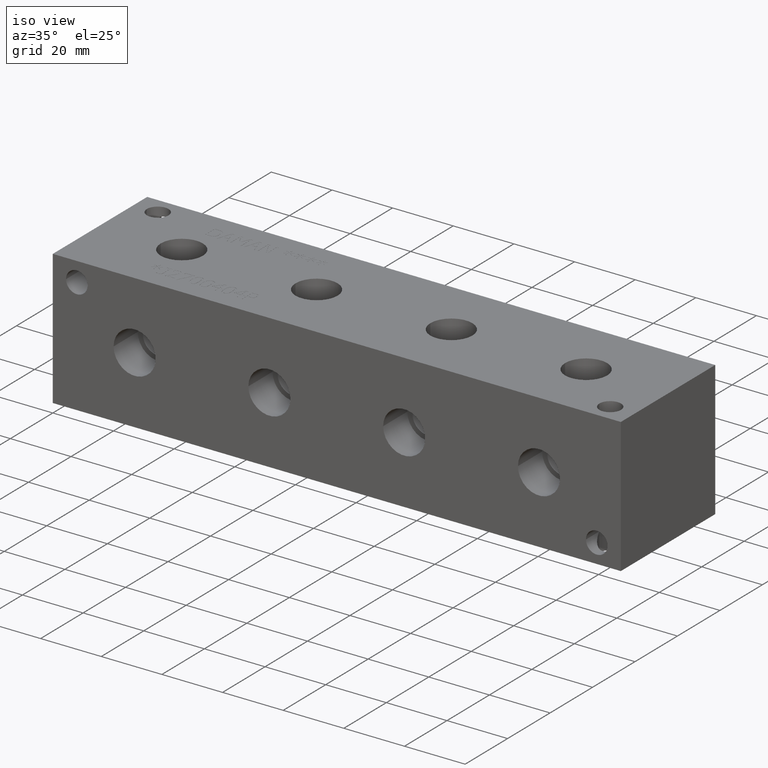
[diagram: clean part render]
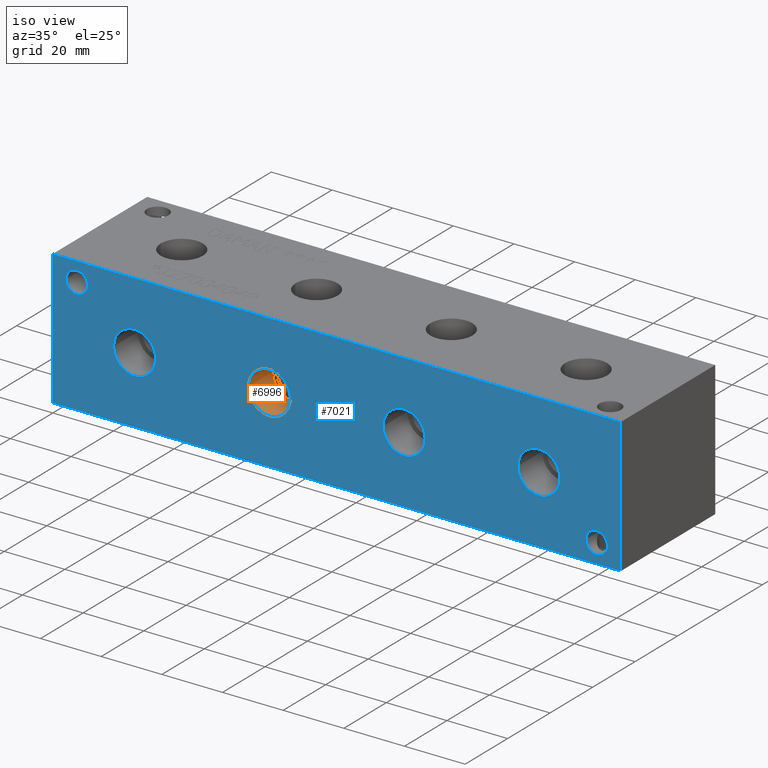
[diagram: same view with the hole feature highlighted: cylindrical wall and planar end face, labeled with their STEP entity ids]
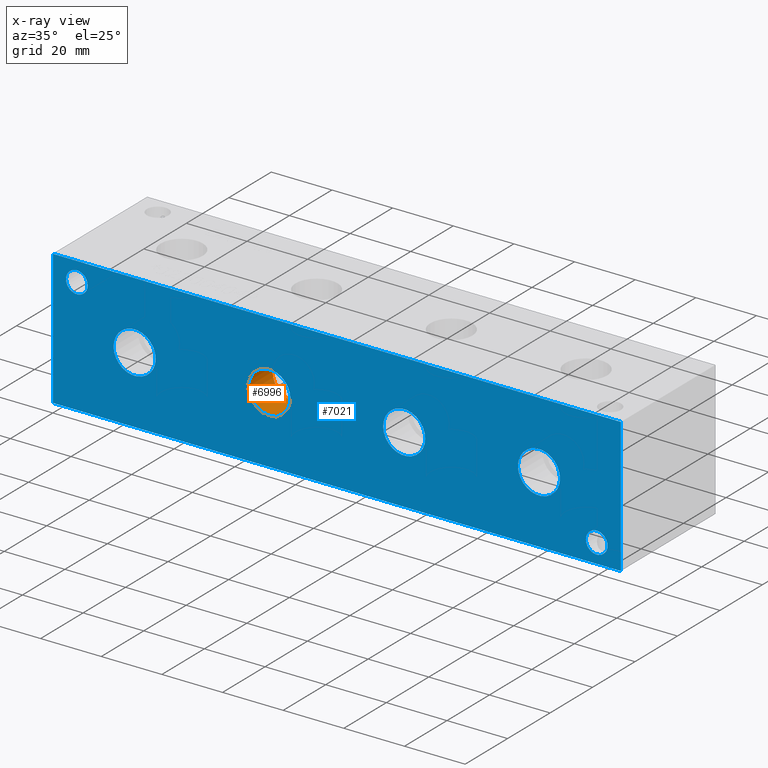
[diagram: x-ray of the same camera — body ghosted, the hole faces saturated]
A machine part, iso view. The highlighted faces form one hole feature of diameter 13.8684 mm: the cylindrical wall (entity #6996, orange) and its adjacent planar end face (entity #7021, blue) — they share a circular edge in the B-rep.
The next image is the same camera in x-ray (body ghosted, the hole faces saturated) — the bore reads through the body.
Wall:
#42=CYLINDRICAL_SURFACE('',#7372,6.9342);
#130=CIRCLE('',#7369,6.9342);
#131=CIRCLE('',#7370,6.9342);
#133=CIRCLE('',#7373,6.9342);
#134=CIRCLE('',#7374,6.9342);
#792=FACE_OUTER_BOUND('',#1188,.T.);
#1188=EDGE_LOOP('',(#6168,#6169,#6170,#6171,#6172,#6173));
#1925=LINE('',#11658,#2640);
#2640=VECTOR('',#8795,6.9342);
#3410=VERTEX_POINT('',#11647);
#3411=VERTEX_POINT('',#11648);
#3413=VERTEX_POINT('',#11654);
#3414=VERTEX_POINT('',#11655);
#4349=EDGE_CURVE('',#3410,#3411,#130,.T.);
#4350=EDGE_CURVE('',#3411,#3410,#131,.T.);
#4352=EDGE_CURVE('',#3413,#3414,#133,.T.);
#4353=EDGE_CURVE('',#3414,#3413,#134,.T.);
#4354=EDGE_CURVE('',#3414,#3411,#1925,.T.);
#6168=ORIENTED_EDGE('',*,*,#4352,.F.);
#6169=ORIENTED_EDGE('',*,*,#4353,.F.);
#6170=ORIENTED_EDGE('',*,*,#4354,.T.);
#6171=ORIENTED_EDGE('',*,*,#4349,.F.);
#6172=ORIENTED_EDGE('',*,*,#4350,.F.);
#6173=ORIENTED_EDGE('',*,*,#4354,.F.);
#6996=ADVANCED_FACE('',(#792),#42,.F.);
#7369=AXIS2_PLACEMENT_3D('',#11649,#8783,#8784);
#7370=AXIS2_PLACEMENT_3D('',#11650,#8785,#8786);
#7372=AXIS2_PLACEMENT_3D('',#11653,#8789,#8790);
#7373=AXIS2_PLACEMENT_3D('',#11656,#8791,#8792);
#7374=AXIS2_PLACEMENT_3D('',#11657,#8793,#8794);
#8783=DIRECTION('center_axis',(0.,-1.,0.));
#8784=DIRECTION('ref_axis',(1.,0.,0.));
#8785=DIRECTION('center_axis',(0.,-1.,0.));
#8786=DIRECTION('ref_axis',(1.,0.,0.));
#8789=DIRECTION('center_axis',(0.,-1.,0.));
#8790=DIRECTION('ref_axis',(1.,0.,0.));
#8791=DIRECTION('center_axis',(0.,1.,0.));
#8792=DIRECTION('ref_axis',(1.,0.,0.));
#8793=DIRECTION('center_axis',(0.,1.,0.));
#8794=DIRECTION('ref_axis',(1.,0.,0.));
#8795=DIRECTION('',(0.,1.,0.));
#11647=CARTESIAN_POINT('',(78.359,11.4046,22.225));
#11648=CARTESIAN_POINT('',(64.4906,11.4046,22.225));
#11649=CARTESIAN_POINT('Origin',(71.4248,11.4046,22.225));
#11650=CARTESIAN_POINT('Origin',(71.4248,11.4046,22.225));
#11653=CARTESIAN_POINT('Origin',(71.4248,5.7023,22.225));
#11654=CARTESIAN_POINT('',(78.359,0.,22.225));
#11655=CARTESIAN_POINT('',(64.4906,0.,22.225));
#11656=CARTESIAN_POINT('Origin',(71.4248,0.,22.225));
#11657=CARTESIAN_POINT('Origin',(71.4248,0.,22.225));
#11658=CARTESIAN_POINT('',(64.4906,5.7023,22.225));
End face:
#106=CIRCLE('',#7320,3.5687);
#107=CIRCLE('',#7321,3.5687);
#109=CIRCLE('',#7329,3.5687);
#110=CIRCLE('',#7330,3.5687);
#119=CIRCLE('',#7351,6.9342);
#120=CIRCLE('',#7352,6.9342);
#126=CIRCLE('',#7362,6.9342);
#127=CIRCLE('',#7363,6.9342);
#133=CIRCLE('',#7373,6.9342);
#134=CIRCLE('',#7374,6.9342);
#140=CIRCLE('',#7384,6.9342);
#141=CIRCLE('',#7385,6.9342);
#210=FACE_BOUND('',#1221,.T.);
#211=FACE_BOUND('',#1222,.T.);
#212=FACE_BOUND('',#1223,.T.);
#213=FACE_BOUND('',#1224,.T.);
#214=FACE_BOUND('',#1225,.T.);
#215=FACE_BOUND('',#1226,.T.);
#462=PLANE('',#7426);
#817=FACE_OUTER_BOUND('',#1220,.T.);
#1220=EDGE_LOOP('',(#6283,#6284,#6285,#6286));
#1221=EDGE_LOOP('',(#6287,#6288));
#1222=EDGE_LOOP('',(#6289,#6290));
#1223=EDGE_LOOP('',(#6291,#6292));
#1224=EDGE_LOOP('',(#6293,#6294));
#1225=EDGE_LOOP('',(#6295,#6296));
#1226=EDGE_LOOP('',(#6297,#6298));
#1517=LINE('',#10526,#2232);
#1943=LINE('',#11759,#2658);
#1948=LINE('',#11768,#2663);
#1949=LINE('',#11770,#2664);
#2232=VECTOR('',#7883,10.);
#2658=VECTOR('',#8911,10.);
#2663=VECTOR('',#8920,10.);
#2664=VECTOR('',#8923,10.);
#3069=VERTEX_POINT('',#10524);
#3070=VERTEX_POINT('',#10525);
#3379=VERTEX_POINT('',#11552);
#3380=VERTEX_POINT('',#11553);
#3384=VERTEX_POINT('',#11568);
#3385=VERTEX_POINT('',#11569);
#3397=VERTEX_POINT('',#11610);
#3398=VERTEX_POINT('',#11611);
#3405=VERTEX_POINT('',#11632);
#3406=VERTEX_POINT('',#11633);
#3413=VERTEX_POINT('',#11654);
#3414=VERTEX_POINT('',#11655);
#3421=VERTEX_POINT('',#11676);
#3422=VERTEX_POINT('',#11677);
#3448=VERTEX_POINT('',#11757);
#3450=VERTEX_POINT('',#11766);
#3853=EDGE_CURVE('',#3069,#3070,#1517,.T.);
#4302=EDGE_CURVE('',#3379,#3380,#106,.T.);
#4303=EDGE_CURVE('',#3380,#3379,#107,.T.);
#4311=EDGE_CURVE('',#3384,#3385,#109,.T.);
#4312=EDGE_CURVE('',#3385,#3384,#110,.T.);
#4332=EDGE_CURVE('',#3397,#3398,#119,.T.);
#4333=EDGE_CURVE('',#3398,#3397,#120,.T.);
#4342=EDGE_CURVE('',#3405,#3406,#126,.T.);
#4343=EDGE_CURVE('',#3406,#3405,#127,.T.);
#4352=EDGE_CURVE('',#3413,#3414,#133,.T.);
#4353=EDGE_CURVE('',#3414,#3413,#134,.T.);
#4362=EDGE_CURVE('',#3421,#3422,#140,.T.);
#4363=EDGE_CURVE('',#3422,#3421,#141,.T.);
#4399=EDGE_CURVE('',#3448,#3069,#1943,.T.);
#4404=EDGE_CURVE('',#3450,#3070,#1948,.T.);
#4405=EDGE_CURVE('',#3448,#3450,#1949,.T.);
#6283=ORIENTED_EDGE('',*,*,#4405,.T.);
#6284=ORIENTED_EDGE('',*,*,#4404,.T.);
#6285=ORIENTED_EDGE('',*,*,#3853,.F.);
#6286=ORIENTED_EDGE('',*,*,#4399,.F.);
#6287=ORIENTED_EDGE('',*,*,#4302,.T.);
#6288=ORIENTED_EDGE('',*,*,#4303,.T.);
#6289=ORIENTED_EDGE('',*,*,#4311,.T.);
#6290=ORIENTED_EDGE('',*,*,#4312,.T.);
#6291=ORIENTED_EDGE('',*,*,#4332,.T.);
#6292=ORIENTED_EDGE('',*,*,#4333,.T.);
#6293=ORIENTED_EDGE('',*,*,#4342,.T.);
#6294=ORIENTED_EDGE('',*,*,#4343,.T.);
#6295=ORIENTED_EDGE('',*,*,#4352,.T.);
#6296=ORIENTED_EDGE('',*,*,#4353,.T.);
#6297=ORIENTED_EDGE('',*,*,#4362,.T.);
#6298=ORIENTED_EDGE('',*,*,#4363,.T.);
#7021=ADVANCED_FACE('',(#817,#210,#211,#212,#213,#214,#215),#462,.T.);
#7320=AXIS2_PLACEMENT_3D('',#11554,#8670,#8671);
#7321=AXIS2_PLACEMENT_3D('',#11555,#8672,#8673);
#7329=AXIS2_PLACEMENT_3D('',#11570,#8690,#8691);
#7330=AXIS2_PLACEMENT_3D('',#11571,#8692,#8693);
#7351=AXIS2_PLACEMENT_3D('',#11612,#8741,#8742);
#7352=AXIS2_PLACEMENT_3D('',#11613,#8743,#8744);
#7362=AXIS2_PLACEMENT_3D('',#11634,#8766,#8767);
#7363=AXIS2_PLACEMENT_3D('',#11635,#8768,#8769);
#7373=AXIS2_PLACEMENT_3D('',#11656,#8791,#8792);
#7374=AXIS2_PLACEMENT_3D('',#11657,#8793,#8794);
#7384=AXIS2_PLACEMENT_3D('',#11678,#8816,#8817);
#7385=AXIS2_PLACEMENT_3D('',#11679,#8818,#8819);
#7426=AXIS2_PLACEMENT_3D('',#11769,#8921,#8922);
#7883=DIRECTION('',(1.,0.,0.));
#8670=DIRECTION('center_axis',(0.,1.,0.));
#8671=DIRECTION('ref_axis',(1.,0.,0.));
#8672=DIRECTION('center_axis',(0.,1.,0.));
#8673=DIRECTION('ref_axis',(1.,0.,0.));
#8690=DIRECTION('center_axis',(0.,1.,0.));
#8691=DIRECTION('ref_axis',(1.,0.,0.));
#8692=DIRECTION('center_axis',(0.,1.,0.));
#8693=DIRECTION('ref_axis',(1.,0.,0.));
#8741=DIRECTION('center_axis',(0.,1.,0.));
#8742=DIRECTION('ref_axis',(1.,0.,0.));
#8743=DIRECTION('center_axis',(0.,1.,0.));
#8744=DIRECTION('ref_axis',(1.,0.,0.));
#8766=DIRECTION('center_axis',(0.,1.,0.));
#8767=DIRECTION('ref_axis',(1.,0.,0.));
#8768=DIRECTION('center_axis',(0.,1.,0.));
#8769=DIRECTION('ref_axis',(1.,0.,0.));
#8791=DIRECTION('center_axis',(0.,1.,0.));
#8792=DIRECTION('ref_axis',(1.,0.,0.));
#8793=DIRECTION('center_axis',(0.,1.,0.));
#8794=DIRECTION('ref_axis',(1.,0.,0.));
#8816=DIRECTION('center_axis',(0.,1.,0.));
#8817=DIRECTION('ref_axis',(1.,0.,0.));
#8818=DIRECTION('center_axis',(0.,1.,0.));
#8819=DIRECTION('ref_axis',(1.,0.,0.));
#8911=DIRECTION('',(0.,0.,1.));
#8920=DIRECTION('',(0.,0.,1.));
#8921=DIRECTION('center_axis',(0.,-1.,0.));
#8922=DIRECTION('ref_axis',(1.,0.,0.));
#8923=DIRECTION('',(1.,0.,0.));
#10524=CARTESIAN_POINT('',(0.,0.,44.45));
#10525=CARTESIAN_POINT('',(187.325,0.,44.45));
#10526=CARTESIAN_POINT('',(0.,0.,44.45));
#11552=CARTESIAN_POINT('',(11.4935,0.,38.1));
#11553=CARTESIAN_POINT('',(4.3561,0.,38.1));
#11554=CARTESIAN_POINT('Origin',(7.9248,0.,38.1));
#11555=CARTESIAN_POINT('Origin',(7.9248,0.,38.1));
#11568=CARTESIAN_POINT('',(182.9435,0.,6.35));
#11569=CARTESIAN_POINT('',(175.8061,0.,6.35));
#11570=CARTESIAN_POINT('Origin',(179.3748,0.,6.35));
#11571=CARTESIAN_POINT('Origin',(179.3748,0.,6.35));
#11610=CARTESIAN_POINT('',(122.809,0.,22.225));
#11611=CARTESIAN_POINT('',(108.9406,0.,22.225));
#11612=CARTESIAN_POINT('Origin',(115.8748,0.,22.225));
#11613=CARTESIAN_POINT('Origin',(115.8748,0.,22.225));
#11632=CARTESIAN_POINT('',(33.909,0.,22.225));
#11633=CARTESIAN_POINT('',(20.0406,0.,22.225));
#11634=CARTESIAN_POINT('Origin',(26.9748,0.,22.225));
#11635=CARTESIAN_POINT('Origin',(26.9748,0.,22.225));
#11654=CARTESIAN_POINT('',(78.359,0.,22.225));
#11655=CARTESIAN_POINT('',(64.4906,0.,22.225));
#11656=CARTESIAN_POINT('Origin',(71.4248,0.,22.225));
#11657=CARTESIAN_POINT('Origin',(71.4248,0.,22.225));
#11676=CARTESIAN_POINT('',(167.259,0.,22.225));
#11677=CARTESIAN_POINT('',(153.3906,0.,22.225));
#11678=CARTESIAN_POINT('Origin',(160.3248,0.,22.225));
#11679=CARTESIAN_POINT('Origin',(160.3248,0.,22.225));
#11757=CARTESIAN_POINT('',(0.,0.,0.));
#11759=CARTESIAN_POINT('',(0.,0.,0.));
#11766=CARTESIAN_POINT('',(187.325,0.,0.));
#11768=CARTESIAN_POINT('',(187.325,0.,0.));
#11769=CARTESIAN_POINT('Origin',(0.,0.,0.));
#11770=CARTESIAN_POINT('',(0.,0.,0.));